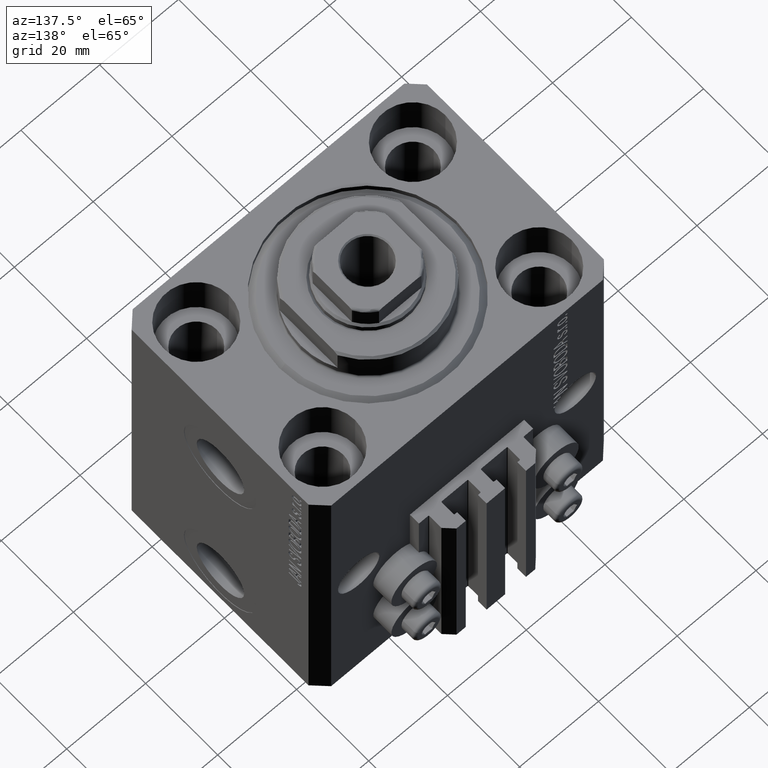
[diagram: clean part render]
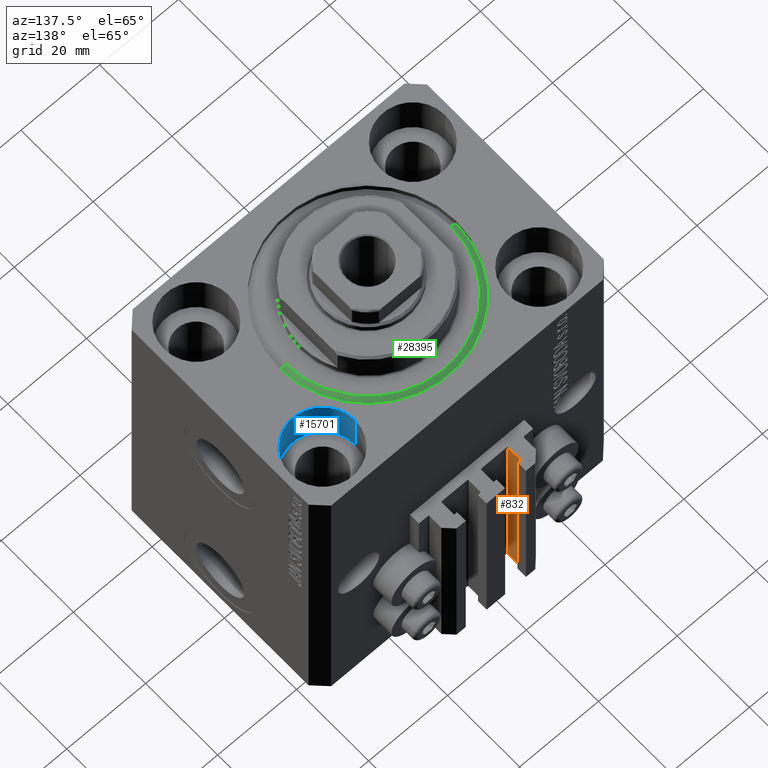
[diagram: same view with three faces highlighted in distinct colors, each labeled with its STEP entity id]
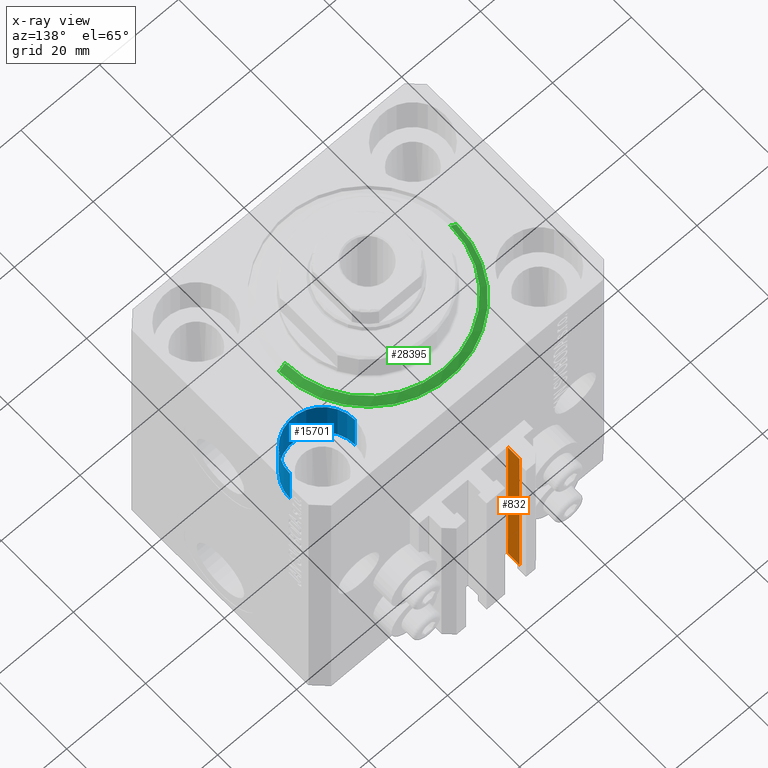
[diagram: x-ray of the same camera — body ghosted, the three highlighted faces saturated]
A machine part, auxiliary view with three faces highlighted in distinct colors.
The next image is the same camera in x-ray (body ghosted, the three faces saturated) — at least one of them is partly hidden behind the body in this view.
Their STEP definitions:

[orange] entity #832 — the highlighted planar face has unit normal (1, 0, 0).
#832 = ADVANCED_FACE ( 'NONE', ( #5783 ), #23764, .T. ) ;
#2882 = LINE ( 'NONE', #43156, #19862 ) ;
#3532 = EDGE_CURVE ( 'NONE', #34616, #19153, #2882, .T. ) ;
#3544 = DIRECTION ( 'NONE',  ( -1.084202172485505223E-15, 1.000000000000000000, 0.000000000000000000 ) ) ;
#3776 = CARTESIAN_POINT ( 'NONE',  ( -8.400000000000000355, 32.89999999999999858, -80.00000000000000000 ) ) ;
#4071 = VERTEX_POINT ( 'NONE', #21870 ) ;
#5783 = FACE_OUTER_BOUND ( 'NONE', #26439, .T. ) ;
#6628 = DIRECTION ( 'NONE',  ( 0.000000000000000000, 0.000000000000000000, 1.000000000000000000 ) ) ;
#7364 = DIRECTION ( 'NONE',  ( 0.000000000000000000, 0.000000000000000000, 1.000000000000000000 ) ) ;
#7553 = CARTESIAN_POINT ( 'NONE',  ( -8.399999999999996803, 29.69999999999999929, -80.00000000000000000 ) ) ;
#8413 = AXIS2_PLACEMENT_3D ( 'NONE', #38229, #9332, #34904 ) ;
#9332 = DIRECTION ( 'NONE',  ( 1.000000000000000000, 1.084202172485505223E-15, -0.000000000000000000 ) ) ;
#9723 = ORIENTED_EDGE ( 'NONE', *, *, #30976, .F. ) ;
#10079 = EDGE_CURVE ( 'NONE', #34616, #17815, #40013, .T. ) ;
#11145 = VECTOR ( 'NONE', #6628, 1000.000000000000000 ) ;
#12316 = ORIENTED_EDGE ( 'NONE', *, *, #3532, .F. ) ;
#13035 = VECTOR ( 'NONE', #39568, 1000.000000000000000 ) ;
#13972 = CARTESIAN_POINT ( 'NONE',  ( -8.399999999999996803, 29.69999999999999929, -33.00000000000000000 ) ) ;
#16609 = CARTESIAN_POINT ( 'NONE',  ( -8.399999999999996803, 29.69999999999999929, -80.00000000000000000 ) ) ;
#17815 = VERTEX_POINT ( 'NONE', #40069 ) ;
#19153 = VERTEX_POINT ( 'NONE', #42361 ) ;
#19862 = VECTOR ( 'NONE', #7364, 1000.000000000000000 ) ;
#21561 = LINE ( 'NONE', #13972, #13035 ) ;
#21870 = CARTESIAN_POINT ( 'NONE',  ( -8.400000000000000355, 32.89999999999999858, -33.00000000000000000 ) ) ;
#21999 = LINE ( 'NONE', #3776, #11145 ) ;
#23764 = PLANE ( 'NONE',  #8413 ) ;
#26439 = EDGE_LOOP ( 'NONE', ( #9723, #12316, #30836, #36627 ) ) ;
#28391 = VECTOR ( 'NONE', #3544, 1000.000000000000000 ) ;
#30836 = ORIENTED_EDGE ( 'NONE', *, *, #10079, .T. ) ;
#30976 = EDGE_CURVE ( 'NONE', #19153, #4071, #21561, .T. ) ;
#34616 = VERTEX_POINT ( 'NONE', #16609 ) ;
#34904 = DIRECTION ( 'NONE',  ( -1.084202172485505223E-15, 1.000000000000000000, 0.000000000000000000 ) ) ;
#36627 = ORIENTED_EDGE ( 'NONE', *, *, #46459, .T. ) ;
#38229 = CARTESIAN_POINT ( 'NONE',  ( -8.399999999999996803, 29.69999999999999929, -80.00000000000000000 ) ) ;
#39568 = DIRECTION ( 'NONE',  ( -1.084202172485505223E-15, 1.000000000000000000, 0.000000000000000000 ) ) ;
#40013 = LINE ( 'NONE', #7553, #28391 ) ;
#40069 = CARTESIAN_POINT ( 'NONE',  ( -8.400000000000000355, 32.89999999999999858, -80.00000000000000000 ) ) ;
#42361 = CARTESIAN_POINT ( 'NONE',  ( -8.399999999999996803, 29.69999999999999929, -33.00000000000000000 ) ) ;
#43156 = CARTESIAN_POINT ( 'NONE',  ( -8.399999999999996803, 29.69999999999999929, -80.00000000000000000 ) ) ;
#46459 = EDGE_CURVE ( 'NONE', #17815, #4071, #21999, .T. ) ;

[blue] entity #15701 — the highlighted cylindrical surface (partial cylindrical patch) has radius 8.25 mm, axis along (0, 0, 1).
#181 = LINE ( 'NONE', #19100, #20550 ) ;
#976 = AXIS2_PLACEMENT_3D ( 'NONE', #10130, #6816, #46855 ) ;
#1246 = CARTESIAN_POINT ( 'NONE',  ( 35.74999999999999289, 17.50000000000001066, 0.000000000000000000 ) ) ;
#2670 = CARTESIAN_POINT ( 'NONE',  ( 19.25000000000000000, 17.50000000000001066, 0.000000000000000000 ) ) ;
#6816 = DIRECTION ( 'NONE',  ( 0.000000000000000000, 0.000000000000000000, 1.000000000000000000 ) ) ;
#7718 = DIRECTION ( 'NONE',  ( -0.000000000000000000, -0.000000000000000000, 1.000000000000000000 ) ) ;
#9973 = VERTEX_POINT ( 'NONE', #24851 ) ;
#10002 = DIRECTION ( 'NONE',  ( 1.000000000000000000, 0.000000000000000000, 0.000000000000000000 ) ) ;
#10130 = CARTESIAN_POINT ( 'NONE',  ( 27.49999999999999645, 17.50000000000001066, -11.00000000000000000 ) ) ;
#10152 = LINE ( 'NONE', #24596, #40495 ) ;
#13438 = EDGE_CURVE ( 'NONE', #9973, #35751, #10152, .T. ) ;
#15265 = FACE_OUTER_BOUND ( 'NONE', #39554, .T. ) ;
#15321 = CIRCLE ( 'NONE', #976, 8.249999999999992895 ) ;
#15701 = ADVANCED_FACE ( 'NONE', ( #15265 ), #21710, .F. ) ;
#16949 = ORIENTED_EDGE ( 'NONE', *, *, #30500, .T. ) ;
#17140 = CARTESIAN_POINT ( 'NONE',  ( 19.25000000000000000, 17.50000000000001066, -11.00000000000000000 ) ) ;
#19100 = CARTESIAN_POINT ( 'NONE',  ( 19.25000000000000000, 17.50000000000001066, -11.00000000000000000 ) ) ;
#19335 = VERTEX_POINT ( 'NONE', #2670 ) ;
#19422 = EDGE_CURVE ( 'NONE', #19335, #35751, #46762, .T. ) ;
#20199 = DIRECTION ( 'NONE',  ( 0.000000000000000000, 0.000000000000000000, 1.000000000000000000 ) ) ;
#20550 = VECTOR ( 'NONE', #33321, 1000.000000000000000 ) ;
#21710 = CYLINDRICAL_SURFACE ( 'NONE', #31472, 8.249999999999992895 ) ;
#23271 = AXIS2_PLACEMENT_3D ( 'NONE', #38674, #20199, #10002 ) ;
#23531 = ORIENTED_EDGE ( 'NONE', *, *, #19422, .T. ) ;
#24596 = CARTESIAN_POINT ( 'NONE',  ( 35.74999999999999289, 17.50000000000001066, -11.00000000000000000 ) ) ;
#24851 = CARTESIAN_POINT ( 'NONE',  ( 35.74999999999999289, 17.50000000000001066, -11.00000000000000000 ) ) ;
#28319 = ORIENTED_EDGE ( 'NONE', *, *, #13438, .F. ) ;
#30500 = EDGE_CURVE ( 'NONE', #38751, #19335, #181, .T. ) ;
#31472 = AXIS2_PLACEMENT_3D ( 'NONE', #33074, #7718, #43283 ) ;
#32865 = EDGE_CURVE ( 'NONE', #38751, #9973, #15321, .T. ) ;
#33074 = CARTESIAN_POINT ( 'NONE',  ( 27.49999999999999645, 17.50000000000001066, -11.00000000000000000 ) ) ;
#33321 = DIRECTION ( 'NONE',  ( -0.000000000000000000, -0.000000000000000000, 1.000000000000000000 ) ) ;
#35751 = VERTEX_POINT ( 'NONE', #1246 ) ;
#38674 = CARTESIAN_POINT ( 'NONE',  ( 27.49999999999999645, 17.50000000000001066, 0.000000000000000000 ) ) ;
#38751 = VERTEX_POINT ( 'NONE', #17140 ) ;
#39058 = DIRECTION ( 'NONE',  ( -0.000000000000000000, -0.000000000000000000, 1.000000000000000000 ) ) ;
#39554 = EDGE_LOOP ( 'NONE', ( #45807, #16949, #23531, #28319 ) ) ;
#40495 = VECTOR ( 'NONE', #39058, 1000.000000000000000 ) ;
#43283 = DIRECTION ( 'NONE',  ( 1.000000000000000000, 0.000000000000000000, 0.000000000000000000 ) ) ;
#45807 = ORIENTED_EDGE ( 'NONE', *, *, #32865, .F. ) ;
#46762 = CIRCLE ( 'NONE', #23271, 8.249999999999992895 ) ;
#46855 = DIRECTION ( 'NONE',  ( 1.000000000000000000, 0.000000000000000000, 0.000000000000000000 ) ) ;

[green] entity #28395 — the highlighted conical surface has half-angle 45 deg.
#78 = CONICAL_SURFACE ( 'NONE', #3113, 22.50000000000000355, 0.7853981633974517207 ) ;
#142 = EDGE_CURVE ( 'NONE', #7574, #32793, #30120, .T. ) ;
#1611 = VECTOR ( 'NONE', #40555, 1000.000000000000114 ) ;
#2355 = DIRECTION ( 'NONE',  ( -0.000000000000000000, -0.000000000000000000, 1.000000000000000000 ) ) ;
#2368 = CARTESIAN_POINT ( 'NONE',  ( 20.99999999999998934, 0.000000000000000000, 0.000000000000000000 ) ) ;
#3113 = AXIS2_PLACEMENT_3D ( 'NONE', #9225, #2355, #34802 ) ;
#3304 = DIRECTION ( 'NONE',  ( 1.000000000000000000, 0.000000000000000000, 0.000000000000000000 ) ) ;
#4057 = CARTESIAN_POINT ( 'NONE',  ( 0.000000000000000000, 0.000000000000000000, 0.000000000000000000 ) ) ;
#4546 = CARTESIAN_POINT ( 'NONE',  ( 22.50000000000000355, 0.000000000000000000, 1.500000000000001332 ) ) ;
#6424 = AXIS2_PLACEMENT_3D ( 'NONE', #4057, #18271, #12091 ) ;
#6784 = CARTESIAN_POINT ( 'NONE',  ( -22.50000000000000355, 2.755455298081545172E-15, 1.500000000000001332 ) ) ;
#7574 = VERTEX_POINT ( 'NONE', #2368 ) ;
#9225 = CARTESIAN_POINT ( 'NONE',  ( 0.000000000000000000, 0.000000000000000000, 1.500000000000001332 ) ) ;
#11476 = CARTESIAN_POINT ( 'NONE',  ( -22.50000000000000355, 0.000000000000000000, 1.500000000000001332 ) ) ;
#12091 = DIRECTION ( 'NONE',  ( 1.000000000000000000, 0.000000000000000000, 0.000000000000000000 ) ) ;
#12768 = CARTESIAN_POINT ( 'NONE',  ( -20.99999999999998934, 2.663606788145492628E-15, 0.000000000000000000 ) ) ;
#14359 = VERTEX_POINT ( 'NONE', #12768 ) ;
#17204 = CIRCLE ( 'NONE', #33839, 22.50000000000000355 ) ;
#17779 = CIRCLE ( 'NONE', #6424, 20.99999999999998934 ) ;
#18271 = DIRECTION ( 'NONE',  ( -0.000000000000000000, -0.000000000000000000, -1.000000000000000000 ) ) ;
#21027 = CARTESIAN_POINT ( 'NONE',  ( 22.50000000000000355, 2.755455298081545172E-15, 1.500000000000001332 ) ) ;
#21222 = DIRECTION ( 'NONE',  ( -0.7071067811865500152, 8.659560562354963673E-17, 0.7071067811865451302 ) ) ;
#21395 = VECTOR ( 'NONE', #21222, 1000.000000000000114 ) ;
#22523 = ORIENTED_EDGE ( 'NONE', *, *, #41388, .F. ) ;
#22767 = ORIENTED_EDGE ( 'NONE', *, *, #32333, .T. ) ;
#27822 = VERTEX_POINT ( 'NONE', #11476 ) ;
#28395 = ADVANCED_FACE ( 'NONE', ( #30787 ), #78, .T. ) ;
#28959 = ORIENTED_EDGE ( 'NONE', *, *, #142, .F. ) ;
#30120 = LINE ( 'NONE', #4546, #1611 ) ;
#30787 = FACE_OUTER_BOUND ( 'NONE', #43232, .T. ) ;
#31891 = LINE ( 'NONE', #6784, #21395 ) ;
#32333 = EDGE_CURVE ( 'NONE', #14359, #27822, #31891, .T. ) ;
#32793 = VERTEX_POINT ( 'NONE', #21027 ) ;
#33839 = AXIS2_PLACEMENT_3D ( 'NONE', #43119, #36451, #3304 ) ;
#34802 = DIRECTION ( 'NONE',  ( 1.000000000000000000, 0.000000000000000000, 0.000000000000000000 ) ) ;
#35310 = ORIENTED_EDGE ( 'NONE', *, *, #46464, .F. ) ;
#36451 = DIRECTION ( 'NONE',  ( -0.000000000000000000, -0.000000000000000000, 1.000000000000000000 ) ) ;
#40555 = DIRECTION ( 'NONE',  ( 0.7071067811865500152, 0.000000000000000000, 0.7071067811865451302 ) ) ;
#41388 = EDGE_CURVE ( 'NONE', #14359, #7574, #17779, .T. ) ;
#43119 = CARTESIAN_POINT ( 'NONE',  ( 0.000000000000000000, 0.000000000000000000, 1.500000000000001332 ) ) ;
#43232 = EDGE_LOOP ( 'NONE', ( #22523, #22767, #35310, #28959 ) ) ;
#46464 = EDGE_CURVE ( 'NONE', #32793, #27822, #17204, .T. ) ;